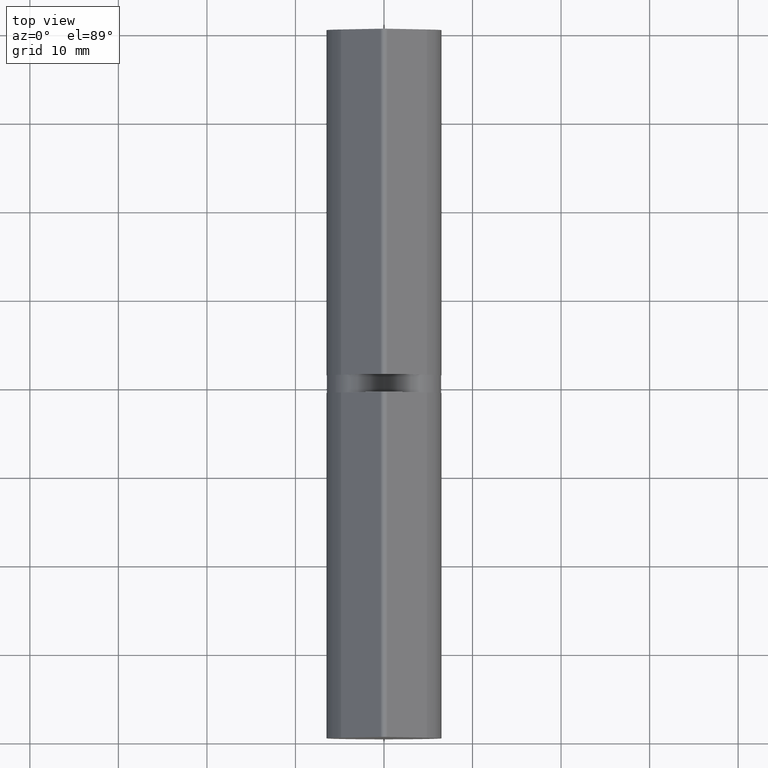
[diagram: clean part render]
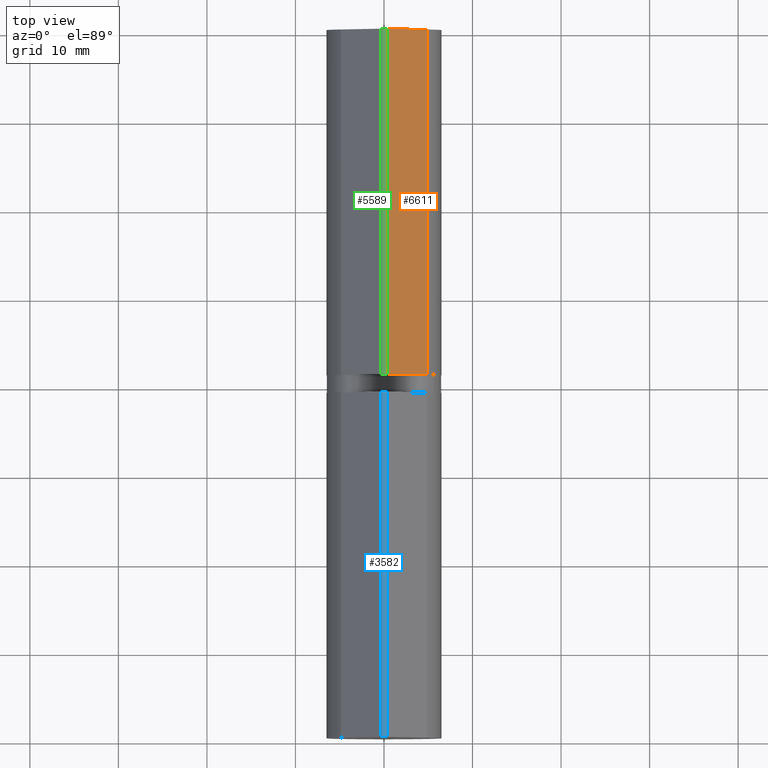
[diagram: same view with three faces highlighted in distinct colors, each labeled with its STEP entity id]
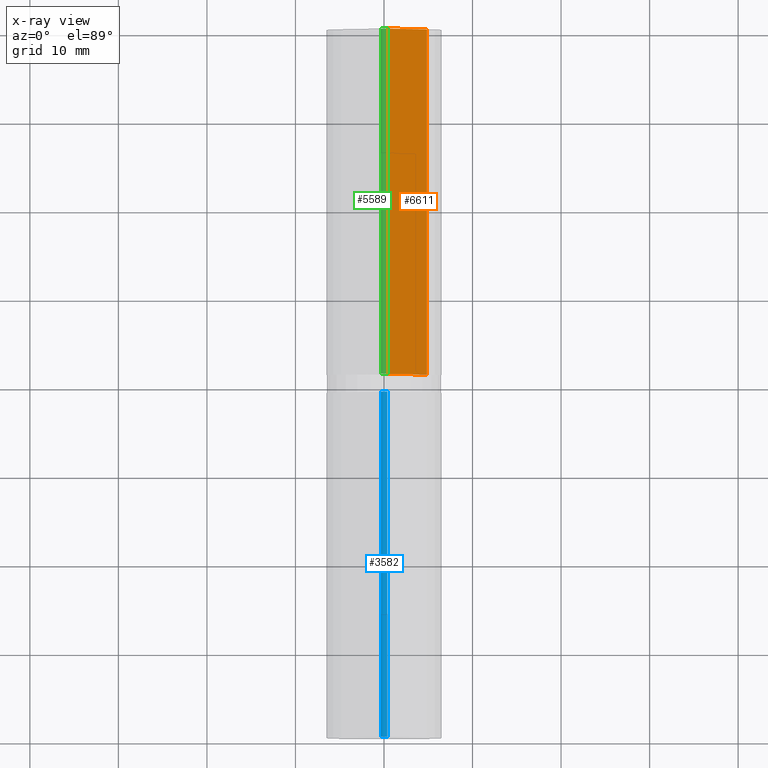
[diagram: x-ray of the same camera — body ghosted, the three highlighted faces saturated]
A machine part, top view with three faces highlighted in distinct colors.
The next image is the same camera in x-ray (body ghosted, the three faces saturated) — at least one of them is partly hidden behind the body in this view.
Their STEP definitions:

[orange] entity #6611 — the highlighted planar face has unit normal (-0.7454, 0, -0.6667).
#87 = CARTESIAN_POINT ( 'NONE',  ( -4.844813951249543393, -19.50000000000000355, 4.333333333333333925 ) ) ;
#333 = CARTESIAN_POINT ( 'NONE',  ( -4.844813951249543393, 19.50000000000000355, 4.333333333333333925 ) ) ;
#594 = DIRECTION ( 'NONE',  ( 0.7453559924999297870, 0.000000000000000000, -0.6666666666666668517 ) ) ;
#790 = CARTESIAN_POINT ( 'NONE',  ( -4.844813951249543393, 19.50000000000000355, 4.333333333333333925 ) ) ;
#857 = FACE_OUTER_BOUND ( 'NONE', #12063, .T. ) ;
#1338 = VERTEX_POINT ( 'NONE', #11660 ) ;
#1570 = DIRECTION ( 'NONE',  ( 0.000000000000000000, -1.000000000000000000, 0.000000000000000000 ) ) ;
#1675 = ORIENTED_EDGE ( 'NONE', *, *, #5812, .T. ) ;
#1693 = CARTESIAN_POINT ( 'NONE',  ( -4.844813951249543393, 19.50000000000000355, 4.333333333333333925 ) ) ;
#3225 = VERTEX_POINT ( 'NONE', #9127 ) ;
#3234 = LINE ( 'NONE', #12603, #13755 ) ;
#3301 = VECTOR ( 'NONE', #7550, 1000.000000000000000 ) ;
#3761 = LINE ( 'NONE', #11205, #8307 ) ;
#3840 = DIRECTION ( 'NONE',  ( -0.6666666666666668517, 0.000000000000000000, -0.7453559924999297870 ) ) ;
#4126 = DIRECTION ( 'NONE',  ( 0.000000000000000000, -1.000000000000000000, 0.000000000000000000 ) ) ;
#5812 = EDGE_CURVE ( 'NONE', #3225, #1338, #9153, .T. ) ;
#6611 = ADVANCED_FACE ( 'NONE', ( #857 ), #11521, .F. ) ;
#6688 = VERTEX_POINT ( 'NONE', #790 ) ;
#6827 = VERTEX_POINT ( 'NONE', #7856 ) ;
#7046 = VECTOR ( 'NONE', #1570, 1000.000000000000000 ) ;
#7550 = DIRECTION ( 'NONE',  ( 0.6666666666666668517, 0.000000000000000000, 0.7453559924999297870 ) ) ;
#7699 = AXIS2_PLACEMENT_3D ( 'NONE', #1693, #594, #3840 ) ;
#7856 = CARTESIAN_POINT ( 'NONE',  ( -0.3726779962499632837, 19.50000000000000355, 9.333333333333332149 ) ) ;
#8186 = ORIENTED_EDGE ( 'NONE', *, *, #8915, .F. ) ;
#8307 = VECTOR ( 'NONE', #12158, 1000.000000000000000 ) ;
#8915 = EDGE_CURVE ( 'NONE', #6688, #6827, #3761, .T. ) ;
#9127 = CARTESIAN_POINT ( 'NONE',  ( -4.844813951249543393, -19.50000000000000355, 4.333333333333333925 ) ) ;
#9153 = LINE ( 'NONE', #87, #3301 ) ;
#9421 = ORIENTED_EDGE ( 'NONE', *, *, #11954, .F. ) ;
#10394 = LINE ( 'NONE', #333, #7046 ) ;
#11205 = CARTESIAN_POINT ( 'NONE',  ( -4.844813951249543393, 19.50000000000000355, 4.333333333333333925 ) ) ;
#11521 = PLANE ( 'NONE',  #7699 ) ;
#11660 = CARTESIAN_POINT ( 'NONE',  ( -0.3726779962499632837, -19.50000000000000355, 9.333333333333332149 ) ) ;
#11954 = EDGE_CURVE ( 'NONE', #6827, #1338, #3234, .T. ) ;
#12063 = EDGE_LOOP ( 'NONE', ( #1675, #9421, #8186, #13436 ) ) ;
#12158 = DIRECTION ( 'NONE',  ( 0.6666666666666668517, 0.000000000000000000, 0.7453559924999297870 ) ) ;
#12603 = CARTESIAN_POINT ( 'NONE',  ( -0.3726779962499632837, 19.50000000000000355, 9.333333333333332149 ) ) ;
#13436 = ORIENTED_EDGE ( 'NONE', *, *, #13792, .T. ) ;
#13755 = VECTOR ( 'NONE', #4126, 1000.000000000000000 ) ;
#13792 = EDGE_CURVE ( 'NONE', #6688, #3225, #10394, .T. ) ;

[blue] entity #3582 — the highlighted cylindrical surface (edge-blend (fillet) strip) has radius 0.5 mm, axis along (-0, -1, -0).
#101 = ORIENTED_EDGE ( 'NONE', *, *, #13568, .F. ) ;
#329 = LINE ( 'NONE', #3917, #8048 ) ;
#614 = CYLINDRICAL_SURFACE ( 'NONE', #13109, 0.4999999999999987232 ) ;
#2202 = LINE ( 'NONE', #9259, #10726 ) ;
#2989 = DIRECTION ( 'NONE',  ( -0.000000000000000000, -1.000000000000000000, -0.000000000000000000 ) ) ;
#3364 = VERTEX_POINT ( 'NONE', #10808 ) ;
#3582 = ADVANCED_FACE ( 'NONE', ( #7843 ), #614, .T. ) ;
#3917 = CARTESIAN_POINT ( 'NONE',  ( 0.3726779962499640053, 19.50000000000000000, 9.333333333333332149 ) ) ;
#3967 = DIRECTION ( 'NONE',  ( -0.000000000000000000, -1.000000000000000000, -0.000000000000000000 ) ) ;
#4211 = ORIENTED_EDGE ( 'NONE', *, *, #4482, .T. ) ;
#4482 = EDGE_CURVE ( 'NONE', #10558, #3364, #10678, .T. ) ;
#5097 = CARTESIAN_POINT ( 'NONE',  ( -0.3726779962499640608, 19.50000000000000000, 9.333333333333332149 ) ) ;
#5123 = EDGE_LOOP ( 'NONE', ( #4211, #101, #9187, #12359 ) ) ;
#5380 = VERTEX_POINT ( 'NONE', #5097 ) ;
#5865 = DIRECTION ( 'NONE',  ( -0.000000000000000000, -1.000000000000000000, -0.000000000000000000 ) ) ;
#6205 = CARTESIAN_POINT ( 'NONE',  ( 0.000000000000000000, 19.50000000000000000, 9.000000000000001776 ) ) ;
#6469 = CARTESIAN_POINT ( 'NONE',  ( 0.000000000000000000, -19.50000000000000000, 9.000000000000001776 ) ) ;
#7347 = DIRECTION ( 'NONE',  ( 0.000000000000000000, 0.000000000000000000, 1.000000000000000000 ) ) ;
#7806 = CARTESIAN_POINT ( 'NONE',  ( 0.000000000000000000, 19.50000000000000000, 9.000000000000001776 ) ) ;
#7843 = FACE_OUTER_BOUND ( 'NONE', #5123, .T. ) ;
#8048 = VECTOR ( 'NONE', #5865, 1000.000000000000000 ) ;
#8478 = DIRECTION ( 'NONE',  ( 0.000000000000000000, 1.000000000000000000, 0.000000000000000000 ) ) ;
#8751 = DIRECTION ( 'NONE',  ( 0.000000000000000000, 0.000000000000000000, 1.000000000000000000 ) ) ;
#8860 = AXIS2_PLACEMENT_3D ( 'NONE', #6469, #8478, #7347 ) ;
#9187 = ORIENTED_EDGE ( 'NONE', *, *, #13137, .F. ) ;
#9259 = CARTESIAN_POINT ( 'NONE',  ( -0.3726779962499640608, 19.50000000000000000, 9.333333333333332149 ) ) ;
#9578 = VERTEX_POINT ( 'NONE', #13888 ) ;
#10331 = DIRECTION ( 'NONE',  ( 0.000000000000000000, 0.000000000000000000, -1.000000000000000000 ) ) ;
#10558 = VERTEX_POINT ( 'NONE', #13443 ) ;
#10678 = CIRCLE ( 'NONE', #8860, 0.4999999999999987232 ) ;
#10726 = VECTOR ( 'NONE', #2989, 1000.000000000000000 ) ;
#10808 = CARTESIAN_POINT ( 'NONE',  ( 0.3726779962499640053, -19.50000000000000000, 9.333333333333332149 ) ) ;
#10974 = DIRECTION ( 'NONE',  ( 0.000000000000000000, 1.000000000000000000, 0.000000000000000000 ) ) ;
#12359 = ORIENTED_EDGE ( 'NONE', *, *, #13289, .T. ) ;
#12404 = CIRCLE ( 'NONE', #13882, 0.4999999999999987232 ) ;
#13109 = AXIS2_PLACEMENT_3D ( 'NONE', #6205, #3967, #10331 ) ;
#13137 = EDGE_CURVE ( 'NONE', #5380, #9578, #12404, .T. ) ;
#13289 = EDGE_CURVE ( 'NONE', #5380, #10558, #2202, .T. ) ;
#13443 = CARTESIAN_POINT ( 'NONE',  ( -0.3726779962499640608, -19.50000000000000000, 9.333333333333332149 ) ) ;
#13568 = EDGE_CURVE ( 'NONE', #9578, #3364, #329, .T. ) ;
#13882 = AXIS2_PLACEMENT_3D ( 'NONE', #7806, #10974, #8751 ) ;
#13888 = CARTESIAN_POINT ( 'NONE',  ( 0.3726779962499640053, 19.50000000000000000, 9.333333333333332149 ) ) ;

[green] entity #5589 — the highlighted cylindrical surface (edge-blend (fillet) strip) has radius 0.5 mm, axis along (0, 1, 0).
#286 = EDGE_CURVE ( 'NONE', #1338, #2601, #3206, .T. ) ;
#1338 = VERTEX_POINT ( 'NONE', #11660 ) ;
#2029 = CIRCLE ( 'NONE', #5276, 0.4999999999999970024 ) ;
#2124 = EDGE_CURVE ( 'NONE', #3672, #2601, #11385, .T. ) ;
#2174 = AXIS2_PLACEMENT_3D ( 'NONE', #10545, #2284, #8637 ) ;
#2284 = DIRECTION ( 'NONE',  ( 0.000000000000000000, 1.000000000000000000, 0.000000000000000000 ) ) ;
#2601 = VERTEX_POINT ( 'NONE', #5364 ) ;
#2951 = CARTESIAN_POINT ( 'NONE',  ( 0.3726779962499633392, 19.50000000000000355, 9.333333333333332149 ) ) ;
#3189 = DIRECTION ( 'NONE',  ( 0.000000000000000000, -1.000000000000000000, 0.000000000000000000 ) ) ;
#3206 = CIRCLE ( 'NONE', #2174, 0.4999999999999970024 ) ;
#3234 = LINE ( 'NONE', #12603, #13755 ) ;
#3621 = CYLINDRICAL_SURFACE ( 'NONE', #12904, 0.4999999999999970024 ) ;
#3672 = VERTEX_POINT ( 'NONE', #2951 ) ;
#4126 = DIRECTION ( 'NONE',  ( 0.000000000000000000, -1.000000000000000000, 0.000000000000000000 ) ) ;
#4163 = DIRECTION ( 'NONE',  ( 0.000000000000000000, 0.000000000000000000, -1.000000000000000000 ) ) ;
#4631 = FACE_OUTER_BOUND ( 'NONE', #10762, .T. ) ;
#4798 = CARTESIAN_POINT ( 'NONE',  ( 0.000000000000000000, 19.50000000000000355, 9.000000000000001776 ) ) ;
#5276 = AXIS2_PLACEMENT_3D ( 'NONE', #4798, #13781, #9631 ) ;
#5364 = CARTESIAN_POINT ( 'NONE',  ( 0.3726779962499633392, -19.50000000000000355, 9.333333333333332149 ) ) ;
#5589 = ADVANCED_FACE ( 'NONE', ( #4631 ), #3621, .T. ) ;
#6827 = VERTEX_POINT ( 'NONE', #7856 ) ;
#7333 = ORIENTED_EDGE ( 'NONE', *, *, #13634, .F. ) ;
#7353 = VECTOR ( 'NONE', #13031, 1000.000000000000000 ) ;
#7542 = ORIENTED_EDGE ( 'NONE', *, *, #11954, .T. ) ;
#7856 = CARTESIAN_POINT ( 'NONE',  ( -0.3726779962499632837, 19.50000000000000355, 9.333333333333332149 ) ) ;
#8637 = DIRECTION ( 'NONE',  ( 0.000000000000000000, 0.000000000000000000, 1.000000000000000000 ) ) ;
#8643 = CARTESIAN_POINT ( 'NONE',  ( 0.3726779962499633392, 19.50000000000000355, 9.333333333333332149 ) ) ;
#9631 = DIRECTION ( 'NONE',  ( 0.000000000000000000, 0.000000000000000000, 1.000000000000000000 ) ) ;
#10545 = CARTESIAN_POINT ( 'NONE',  ( 0.000000000000000000, -19.50000000000000355, 9.000000000000001776 ) ) ;
#10762 = EDGE_LOOP ( 'NONE', ( #11396, #12102, #7333, #7542 ) ) ;
#11385 = LINE ( 'NONE', #8643, #7353 ) ;
#11396 = ORIENTED_EDGE ( 'NONE', *, *, #286, .T. ) ;
#11609 = CARTESIAN_POINT ( 'NONE',  ( 0.000000000000000000, 19.50000000000000355, 9.000000000000001776 ) ) ;
#11660 = CARTESIAN_POINT ( 'NONE',  ( -0.3726779962499632837, -19.50000000000000355, 9.333333333333332149 ) ) ;
#11954 = EDGE_CURVE ( 'NONE', #6827, #1338, #3234, .T. ) ;
#12102 = ORIENTED_EDGE ( 'NONE', *, *, #2124, .F. ) ;
#12603 = CARTESIAN_POINT ( 'NONE',  ( -0.3726779962499632837, 19.50000000000000355, 9.333333333333332149 ) ) ;
#12904 = AXIS2_PLACEMENT_3D ( 'NONE', #11609, #3189, #4163 ) ;
#13031 = DIRECTION ( 'NONE',  ( 0.000000000000000000, -1.000000000000000000, 0.000000000000000000 ) ) ;
#13634 = EDGE_CURVE ( 'NONE', #6827, #3672, #2029, .T. ) ;
#13755 = VECTOR ( 'NONE', #4126, 1000.000000000000000 ) ;
#13781 = DIRECTION ( 'NONE',  ( 0.000000000000000000, 1.000000000000000000, 0.000000000000000000 ) ) ;